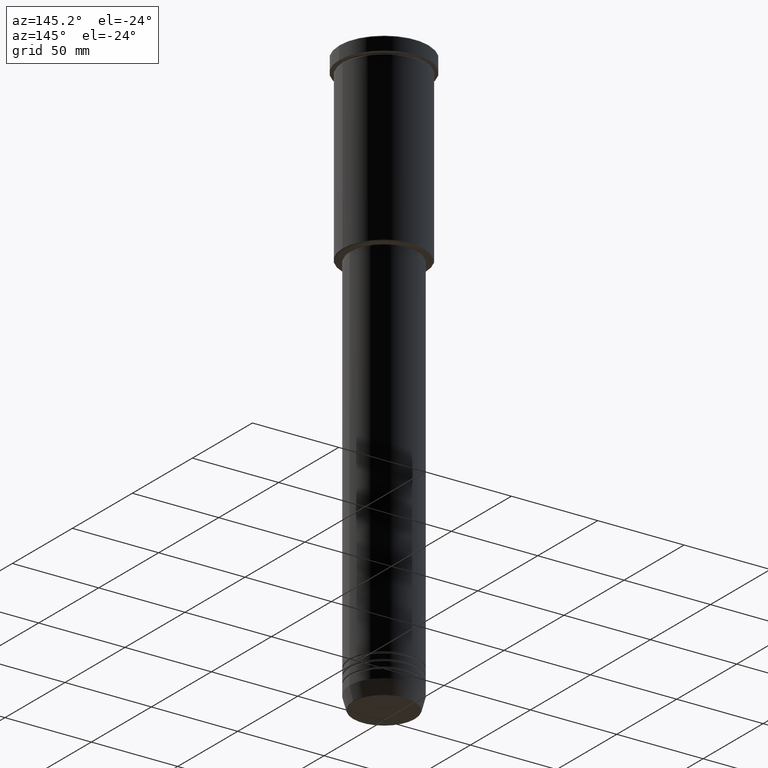
[diagram: clean part render]
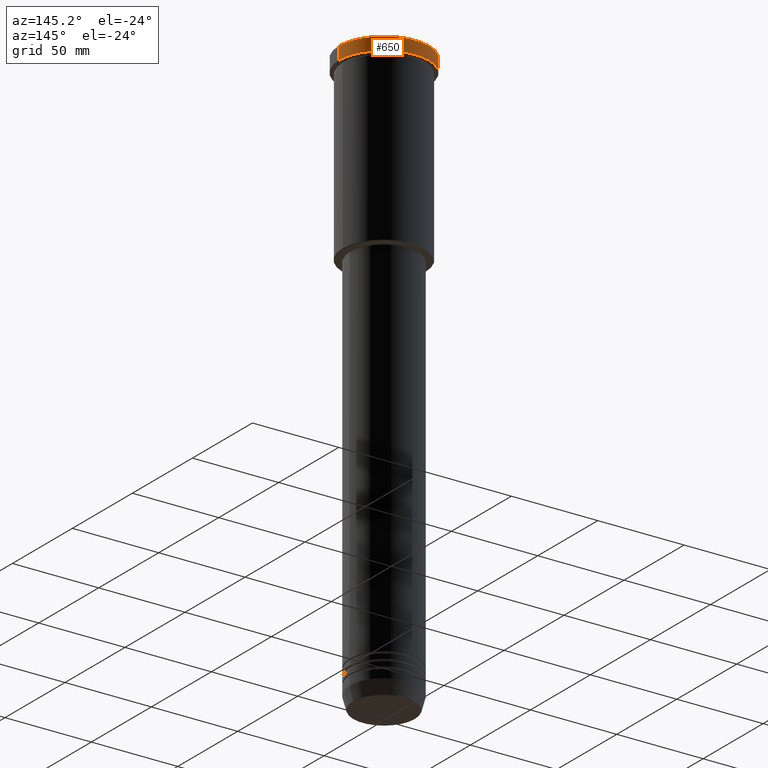
[diagram: same view with one face highlighted and labeled with its STEP entity id]
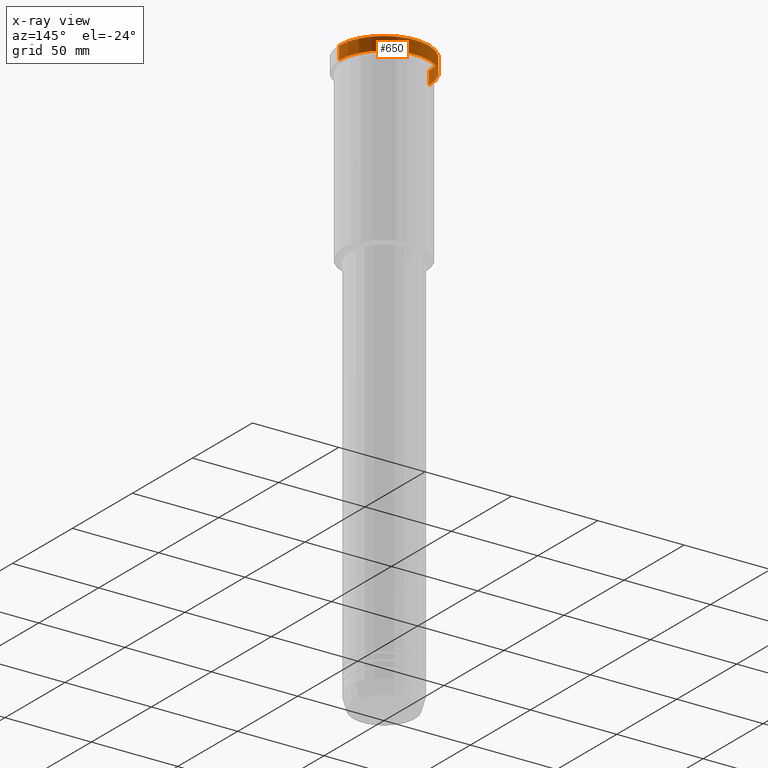
[diagram: x-ray of the same camera — body ghosted, the highlighted face saturated]
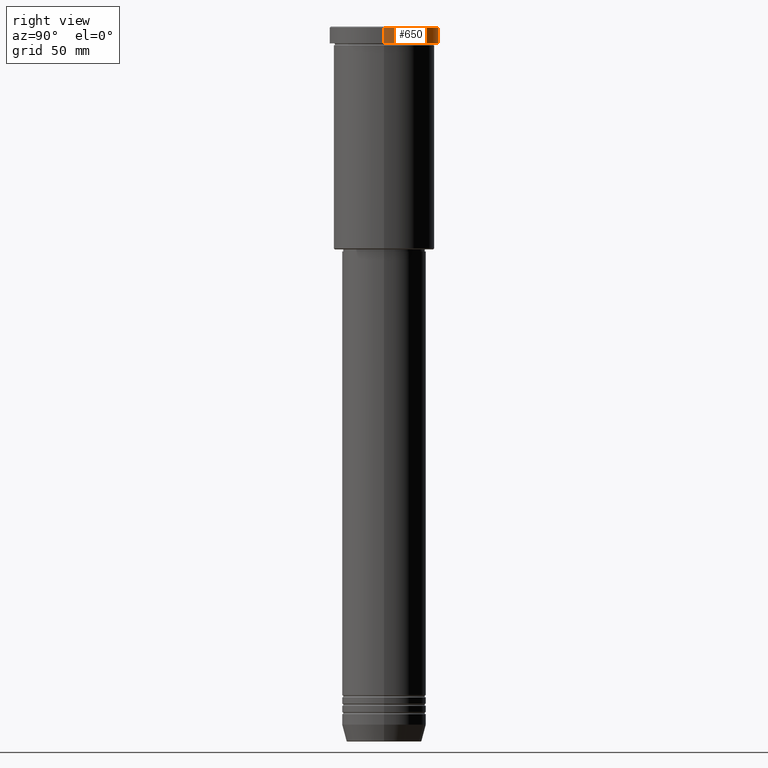
[diagram: same view with one face highlighted and labeled with its STEP entity id]
A machine part, auxiliary view. The second image highlights one B-rep face of the part: STEP entity #650.
The next image is the same camera in x-ray: the body ghosted, the highlighted face saturated — about 0% of this face is hidden behind the body in this view.
A second angle (right view) of the same face is appended — the face is thin or edge-on in the first view.
In plain terms, the highlighted cylindrical surface (partial cylindrical patch) has radius 26 mm, axis along (-0, -0, 1).
Its self-contained STEP definition (entity closure, byte-faithful):
#55 = DIRECTION ( 'NONE',  ( 1.000000000000000000, 0.000000000000000000, 0.000000000000000000 ) ) ;
#59 = CARTESIAN_POINT ( 'NONE',  ( 0.000000000000000000, 0.000000000000000000, 0.000000000000000000 ) ) ;
#89 = VERTEX_POINT ( 'NONE', #308 ) ;
#93 = DIRECTION ( 'NONE',  ( 1.000000000000000000, 0.000000000000000000, 0.000000000000000000 ) ) ;
#111 = LINE ( 'NONE', #388, #689 ) ;
#146 = FACE_OUTER_BOUND ( 'NONE', #301, .T. ) ;
#153 = VERTEX_POINT ( 'NONE', #609 ) ;
#227 = AXIS2_PLACEMENT_3D ( 'NONE', #247, #530, #640 ) ;
#242 = DIRECTION ( 'NONE',  ( -0.000000000000000000, -0.000000000000000000, 1.000000000000000000 ) ) ;
#247 = CARTESIAN_POINT ( 'NONE',  ( 0.000000000000000000, 0.000000000000000000, -7.999999999999992895 ) ) ;
#288 = EDGE_CURVE ( 'NONE', #1121, #89, #1015, .T. ) ;
#301 = EDGE_LOOP ( 'NONE', ( #1025, #1124, #642, #1071 ) ) ;
#308 = CARTESIAN_POINT ( 'NONE',  ( 26.00000000000000000, 0.000000000000000000, -0.4999999999999692468 ) ) ;
#316 = CIRCLE ( 'NONE', #227, 26.00000000000000000 ) ;
#372 = DIRECTION ( 'NONE',  ( 0.000000000000000000, 0.000000000000000000, -1.000000000000000000 ) ) ;
#388 = CARTESIAN_POINT ( 'NONE',  ( -26.00000000000000000, 3.184081677783118191E-15, 0.000000000000000000 ) ) ;
#395 = CARTESIAN_POINT ( 'NONE',  ( 26.00000000000000000, 0.000000000000000000, 0.000000000000000000 ) ) ;
#419 = AXIS2_PLACEMENT_3D ( 'NONE', #59, #242, #55 ) ;
#496 = EDGE_CURVE ( 'NONE', #1098, #89, #569, .T. ) ;
#530 = DIRECTION ( 'NONE',  ( -0.000000000000000000, -0.000000000000000000, 1.000000000000000000 ) ) ;
#533 = VECTOR ( 'NONE', #751, 1000.000000000000000 ) ;
#569 = CIRCLE ( 'NONE', #863, 26.00000000000000000 ) ;
#609 = CARTESIAN_POINT ( 'NONE',  ( -26.00000000000000000, 3.184081677783118191E-15, -7.999999999999992895 ) ) ;
#620 = CYLINDRICAL_SURFACE ( 'NONE', #419, 26.00000000000000000 ) ;
#640 = DIRECTION ( 'NONE',  ( 1.000000000000000000, 0.000000000000000000, 0.000000000000000000 ) ) ;
#642 = ORIENTED_EDGE ( 'NONE', *, *, #496, .T. ) ;
#650 = ADVANCED_FACE ( 'NONE', ( #146 ), #620, .T. ) ;
#654 = DIRECTION ( 'NONE',  ( -0.000000000000000000, -0.000000000000000000, 1.000000000000000000 ) ) ;
#689 = VECTOR ( 'NONE', #654, 1000.000000000000000 ) ;
#751 = DIRECTION ( 'NONE',  ( -0.000000000000000000, -0.000000000000000000, 1.000000000000000000 ) ) ;
#770 = CARTESIAN_POINT ( 'NONE',  ( 26.00000000000000000, 0.000000000000000000, -7.999999999999992895 ) ) ;
#778 = CARTESIAN_POINT ( 'NONE',  ( -26.00000000000000000, 3.184081677783118191E-15, -0.4999999999999692468 ) ) ;
#822 = CARTESIAN_POINT ( 'NONE',  ( 0.000000000000000000, 0.000000000000000000, -0.4999999999999692468 ) ) ;
#841 = EDGE_CURVE ( 'NONE', #1121, #153, #316, .T. ) ;
#863 = AXIS2_PLACEMENT_3D ( 'NONE', #822, #372, #93 ) ;
#952 = EDGE_CURVE ( 'NONE', #153, #1098, #111, .T. ) ;
#1015 = LINE ( 'NONE', #395, #533 ) ;
#1025 = ORIENTED_EDGE ( 'NONE', *, *, #841, .T. ) ;
#1071 = ORIENTED_EDGE ( 'NONE', *, *, #288, .F. ) ;
#1098 = VERTEX_POINT ( 'NONE', #778 ) ;
#1121 = VERTEX_POINT ( 'NONE', #770 ) ;
#1124 = ORIENTED_EDGE ( 'NONE', *, *, #952, .T. ) ;